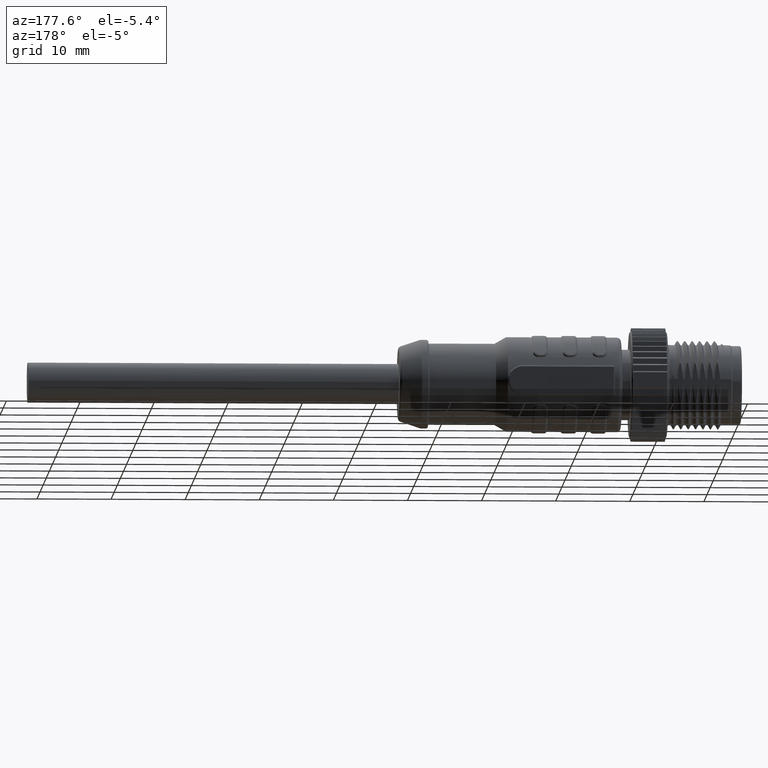
[diagram: clean part render]
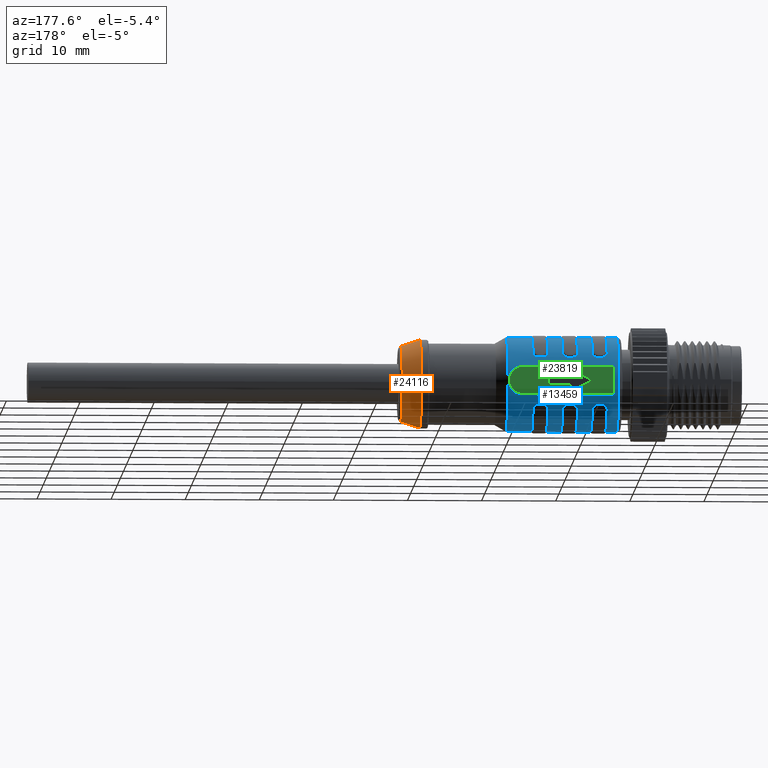
[diagram: same view with three faces highlighted in distinct colors, each labeled with its STEP entity id]
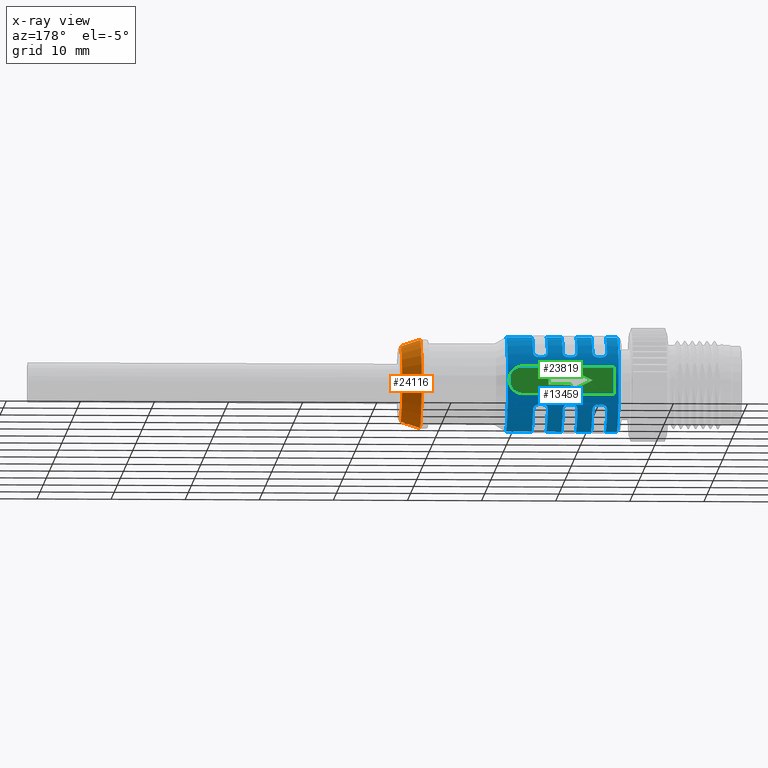
[diagram: x-ray of the same camera — body ghosted, the three highlighted faces saturated]
A machine part, auxiliary view with three faces highlighted in distinct colors.
The next image is the same camera in x-ray (body ghosted, the three faces saturated) — at least one of them is partly hidden behind the body in this view.
Their STEP definitions:

[orange] entity #24116 — the highlighted conical surface has half-angle 18.435 deg.
#6893=CARTESIAN_POINT('',(4.127697505292E1,0.E0,0.E0));
#6894=DIRECTION('',(1.E0,0.E0,0.E0));
#6895=DIRECTION('',(0.E0,0.E0,-1.E0));
#6896=AXIS2_PLACEMENT_3D('',#6893,#6894,#6895);
#6908=DIRECTION('',(-9.486832980504E-1,0.E0,3.162277660170E-1));
#6909=VECTOR('',#6908,2.720759220062E0);
#6910=CARTESIAN_POINT('',(4.385811388301E1,0.E0,5.113962038997E0));
#6911=LINE('',#6910,#6909);
#6919=CARTESIAN_POINT('',(4.385811388301E1,0.E0,0.E0));
#6920=DIRECTION('',(-1.E0,0.E0,0.E0));
#6921=DIRECTION('',(0.E0,0.E0,1.E0));
#6922=AXIS2_PLACEMENT_3D('',#6919,#6920,#6921);
#6924=CARTESIAN_POINT('',(4.385811388301E1,0.E0,0.E0));
#6925=DIRECTION('',(-1.E0,0.E0,0.E0));
#6926=DIRECTION('',(0.E0,2.319235123069E-3,9.999973105706E-1));
#6927=AXIS2_PLACEMENT_3D('',#6924,#6925,#6926);
#6976=DIRECTION('',(-9.486832980504E-1,0.E0,-3.162277660170E-1));
#6977=VECTOR('',#6976,2.720759220062E0);
#6978=CARTESIAN_POINT('',(4.385811388301E1,-1.173212320598E-14,
-5.113962038997E0));
#6979=LINE('',#6978,#6977);
#11900=CARTESIAN_POINT('',(4.127697505292E1,-2.579976078516E-14,
-5.974341649028E0));
#11901=CARTESIAN_POINT('',(4.127697505292E1,0.E0,5.974341649028E0));
#11902=VERTEX_POINT('',#11900);
#11903=VERTEX_POINT('',#11901);
#11904=CARTESIAN_POINT('',(4.385811388301E1,1.186048037888E-2,
5.113948285357E0));
#11905=CARTESIAN_POINT('',(4.385811388301E1,-2.239701479834E-14,
-5.113962038997E0));
#11906=VERTEX_POINT('',#11904);
#11907=VERTEX_POINT('',#11905);
#11908=CARTESIAN_POINT('',(4.385811388301E1,0.E0,5.113962038997E0));
#11909=VERTEX_POINT('',#11908);
#24100=CARTESIAN_POINT('',(4.256754446797E1,0.E0,0.E0));
#24101=DIRECTION('',(-1.E0,0.E0,0.E0));
#24102=DIRECTION('',(0.E0,0.E0,1.E0));
#24103=AXIS2_PLACEMENT_3D('',#24100,#24101,#24102);
#24104=CONICAL_SURFACE('',#24103,5.544151844012E0,1.843494882292E1);
#24106=ORIENTED_EDGE('',*,*,#24105,.F.);
#24108=ORIENTED_EDGE('',*,*,#24107,.F.);
#24110=ORIENTED_EDGE('',*,*,#24109,.T.);
#24111=ORIENTED_EDGE('',*,*,#24090,.F.);
#24113=ORIENTED_EDGE('',*,*,#24112,.F.);
#24114=EDGE_LOOP('',(#24106,#24108,#24110,#24111,#24113));
#24115=FACE_OUTER_BOUND('',#24114,.F.);
#24116=ADVANCED_FACE('',(#24115),#24104,.T.);
#6897=CIRCLE('',#6896,5.974341649028E0);
#6923=CIRCLE('',#6922,5.113962038997E0);
#6928=CIRCLE('',#6927,5.113962038997E0);
#24090=EDGE_CURVE('',#11902,#11903,#6897,.T.);
#24105=EDGE_CURVE('',#11906,#11907,#6928,.T.);
#24107=EDGE_CURVE('',#11909,#11906,#6923,.T.);
#24109=EDGE_CURVE('',#11909,#11903,#6911,.T.);
#24112=EDGE_CURVE('',#11907,#11902,#6979,.T.);

[blue] entity #13459 — the highlighted cylindrical surface (partial cylindrical patch) has radius 6.4 mm, axis along (-1, 0, 0).
#571=DIRECTION('',(-9.999999997891E-1,2.053966441587E-5,1.852296096468E-12));
#572=VECTOR('',#571,1.999999997643E0);
#573=CARTESIAN_POINT('',(2.419999999850E1,-2.034727149912E-5,
-6.399999999903E0));
#574=LINE('',#573,#572);
#575=DIRECTION('',(-9.999999997891E-1,2.053966441589E-5,1.852296096468E-12));
#576=VECTOR('',#575,1.999999997643E0);
#577=CARTESIAN_POINT('',(2.019999999850E1,-2.034727149914E-5,
-6.399999999903E0));
#578=LINE('',#577,#576);
#657=CARTESIAN_POINT('',(2.964115427319E1,0.E0,0.E0));
#658=DIRECTION('',(-1.E0,0.E0,0.E0));
#659=DIRECTION('',(0.E0,0.E0,1.E0));
#660=AXIS2_PLACEMENT_3D('',#657,#658,#659);
#675=DIRECTION('',(-9.999999999816E-1,-6.059322400566E-6,-2.926676087035E-11));
#676=VECTOR('',#675,3.441154271713E0);
#677=CARTESIAN_POINT('',(2.964115427319E1,0.E0,6.399999999999E0));
#678=LINE('',#677,#676);
#679=DIRECTION('',(-9.999999997881E-1,-2.058735250332E-5,-2.545519353871E-12));
#680=VECTOR('',#679,1.999999997635E0);
#681=CARTESIAN_POINT('',(2.419999999875E1,2.032364179484E-5,6.399999999903E0));
#682=LINE('',#681,#680);
#683=DIRECTION('',(-9.999999997881E-1,-2.058735250331E-5,-2.545519353871E-12));
#684=VECTOR('',#683,1.999999997635E0);
#685=CARTESIAN_POINT('',(2.019999999875E1,2.032364179486E-5,6.399999999903E0));
#686=LINE('',#685,#684);
#687=DIRECTION('',(-9.999999999082E-1,-1.354909454062E-5,6.461142736739E-11));
#688=VECTOR('',#687,1.499999998888E0);
#689=CARTESIAN_POINT('',(1.619999999875E1,2.032364179482E-5,6.399999999903E0));
#690=LINE('',#689,#688);
#691=DIRECTION('',(9.999999999080E-1,-1.356484767845E-5,6.476182559069E-11));
#692=VECTOR('',#691,1.499999998639E0);
#693=CARTESIAN_POINT('',(1.47E1,0.E0,-6.4E0));
#694=LINE('',#693,#692);
#695=DIRECTION('',(9.999999999819E-1,-6.024739272015E-6,-2.892941790041E-11));
#696=VECTOR('',#695,3.441154271972E0);
#697=CARTESIAN_POINT('',(2.620000000128E1,2.073205728420E-5,-6.399999999899E0));
#698=LINE('',#697,#696);
#699=CARTESIAN_POINT('',(1.52E1,6.300000003816E0,-1.126942723611E0));
#700=CARTESIAN_POINT('',(1.52E1,6.319695346920E0,-1.016838934437E0));
#701=CARTESIAN_POINT('',(1.520580994967E1,6.355170181696E0,-7.862836843178E-1));
#702=CARTESIAN_POINT('',(1.522156831700E1,6.391704571405E0,-3.978786821250E-1));
#703=CARTESIAN_POINT('',(1.522679491894E1,6.399999999470E0,-1.344980252776E-1));
#704=CARTESIAN_POINT('',(1.522679491924E1,6.399999999999E0,-2.517811006743E-8));
#706=CARTESIAN_POINT('',(1.522679491924E1,6.399999999999E0,-2.517811006743E-8));
#707=CARTESIAN_POINT('',(1.522679491955E1,6.400000000528E0,1.345008115570E-1));
#708=CARTESIAN_POINT('',(1.522156811764E1,6.391704336094E0,3.978853496071E-1));
#709=CARTESIAN_POINT('',(1.520580937799E1,6.355168403391E0,7.862980314658E-1));
#710=CARTESIAN_POINT('',(1.52E1,6.319694249074E0,1.016845069762E0));
#711=CARTESIAN_POINT('',(1.52E1,6.300000003816E0,1.126942721597E0));
#713=CARTESIAN_POINT('',(1.52E1,6.141661013114E0,1.8E0));
#714=CARTESIAN_POINT('',(1.52E1,6.133465097813E0,1.827964740818E0));
#715=CARTESIAN_POINT('',(1.521075195406E1,6.118078221060E0,1.879118233744E0));
#716=CARTESIAN_POINT('',(1.525657168699E1,6.096689635688E0,1.947197619874E0));
#717=CARTESIAN_POINT('',(1.532412199528E1,6.082709639096E0,1.990197831782E0));
#718=CARTESIAN_POINT('',(1.537342687209E1,6.079473661428E0,2.E0));
#719=CARTESIAN_POINT('',(1.54E1,6.079473661428E0,2.E0));
#721=DIRECTION('',(1.E0,0.E0,0.E0));
#722=VECTOR('',#721,1.224115427319E1);
#723=CARTESIAN_POINT('',(1.54E1,6.079473661428E0,2.E0));
#724=LINE('',#723,#722);
#725=CARTESIAN_POINT('',(2.764115427319E1,6.079473661428E0,2.E0));
#726=CARTESIAN_POINT('',(2.780163845529E1,6.079473661428E0,2.E0));
#727=CARTESIAN_POINT('',(2.811464833037E1,6.091755592816E0,1.963359181012E0));
#728=CARTESIAN_POINT('',(2.858327753704E1,6.146883456250E0,1.787315610165E0));
#729=CARTESIAN_POINT('',(2.898205771589E1,6.222318587440E0,1.509587500097E0));
#730=CARTESIAN_POINT('',(2.919872446863E1,6.275163225418E0,1.265788930628E0));
#731=CARTESIAN_POINT('',(2.929342543737E1,6.3E0,1.126942766960E0));
#733=CARTESIAN_POINT('',(2.929342543737E1,6.3E0,1.126942766960E0));
#734=CARTESIAN_POINT('',(2.936165420304E1,6.317894035251E0,1.026908918402E0));
#735=CARTESIAN_POINT('',(2.947730784380E1,6.351788841641E0,8.105054141266E-1));
#736=CARTESIAN_POINT('',(2.958763890125E1,6.389730560111E0,4.306898750298E-1));
#737=CARTESIAN_POINT('',(2.961435935395E1,6.400000000004E0,1.486254929692E-1));
#738=CARTESIAN_POINT('',(2.961435935394E1,6.400000000001E0,
-1.295952903086E-10));
#740=CARTESIAN_POINT('',(2.961435935394E1,6.400000000001E0,
-1.295952903086E-10));
#741=CARTESIAN_POINT('',(2.961435935394E1,6.399999999998E0,-1.492340873848E-1));
#742=CARTESIAN_POINT('',(2.958742330874E1,6.389647570688E0,-4.320996904939E-1));
#743=CARTESIAN_POINT('',(2.947671250477E1,6.351599550365E0,-8.118824911541E-1));
#744=CARTESIAN_POINT('',(2.936129774260E1,6.317800548059E0,-1.027431544156E0));
#745=CARTESIAN_POINT('',(2.929342543737E1,6.3E0,-1.126942766960E0));
#747=CARTESIAN_POINT('',(2.929342543737E1,6.3E0,-1.126942766960E0));
#748=CARTESIAN_POINT('',(2.919869386668E1,6.275155199587E0,-1.265833797800E0));
#749=CARTESIAN_POINT('',(2.898196104747E1,6.222296159373E0,-1.509681462139E0));
#750=CARTESIAN_POINT('',(2.858312631997E1,6.146859673756E0,-1.787395308827E0));
#751=CARTESIAN_POINT('',(2.811451527086E1,6.091746896638E0,-1.963385022303E0));
#752=CARTESIAN_POINT('',(2.780158403127E1,6.079473661428E0,-2.E0));
#753=CARTESIAN_POINT('',(2.764115427319E1,6.079473661428E0,-2.E0));
#755=DIRECTION('',(-1.E0,0.E0,0.E0));
#756=VECTOR('',#755,1.224115427319E1);
#757=CARTESIAN_POINT('',(2.764115427319E1,6.079473661428E0,-2.E0));
#758=LINE('',#757,#756);
#759=CARTESIAN_POINT('',(1.54E1,6.079473661428E0,-2.E0));
#760=CARTESIAN_POINT('',(1.537307195620E1,6.079473661428E0,-2.E0));
#761=CARTESIAN_POINT('',(1.532334254447E1,6.082825530815E0,-1.989845588511E0));
#762=CARTESIAN_POINT('',(1.525686526739E1,6.096675990605E0,-1.947229248931E0));
#763=CARTESIAN_POINT('',(1.521120426843E1,6.117753306916E0,-1.880171213570E0));
#764=CARTESIAN_POINT('',(1.52E1,6.133326229622E0,-1.828438563792E0));
#765=CARTESIAN_POINT('',(1.52E1,6.141661013114E0,-1.8E0));
#767=CARTESIAN_POINT('',(2.620000000154E1,0.E0,0.E0));
#768=DIRECTION('',(1.E0,0.E0,0.E0));
#769=DIRECTION('',(0.E0,8.014645714579E-1,5.980422566156E-1));
#770=AXIS2_PLACEMENT_3D('',#767,#768,#769);
#861=CARTESIAN_POINT('',(2.419999999875E1,0.E0,0.E0));
#862=DIRECTION('',(-1.E0,0.E0,0.E0));
#863=DIRECTION('',(0.E0,0.E0,1.E0));
#864=AXIS2_PLACEMENT_3D('',#861,#862,#863);
#876=CARTESIAN_POINT('',(2.419999999921E1,5.129373137423E0,3.827470603394E0));
#877=CARTESIAN_POINT('',(2.419999959344E1,5.178060363348E0,3.762222560724E0));
#878=CARTESIAN_POINT('',(2.422482412089E1,5.267740066695E0,3.636985281368E0));
#879=CARTESIAN_POINT('',(2.433264968567E1,5.386024756198E0,3.458821240477E0));
#880=CARTESIAN_POINT('',(2.450104443872E1,5.475021440549E0,3.315193213931E0));
#881=CARTESIAN_POINT('',(2.471539562432E1,5.530187328239E0,3.221584295282E0));
#882=CARTESIAN_POINT('',(2.486891410116E1,5.542562441258E0,3.200000247345E0));
#883=CARTESIAN_POINT('',(2.495000013524E1,5.542562584118E0,3.199999999905E0));
#890=DIRECTION('',(1.E0,2.051124270099E-10,1.894938052750E-10));
#891=VECTOR('',#890,4.999998647619E-1);
#892=CARTESIAN_POINT('',(2.495000013524E1,5.542562584118E0,3.199999999905E0));
#893=LINE('',#892,#891);
#899=CARTESIAN_POINT('',(2.545E1,5.542562584220E0,3.2E0));
#900=CARTESIAN_POINT('',(2.553118455053E1,5.542562427310E0,3.200000271776E0));
#901=CARTESIAN_POINT('',(2.568484921255E1,5.530157657034E0,3.221636234781E0));
#902=CARTESIAN_POINT('',(2.589927360292E1,5.474907932884E0,3.315382947369E0));
#903=CARTESIAN_POINT('',(2.606758167199E1,5.385847219821E0,3.459098496529E0));
#904=CARTESIAN_POINT('',(2.617524496803E1,5.267581782351E0,3.637211579187E0));
#905=CARTESIAN_POINT('',(2.620000048429E1,5.177992810478E0,3.762313092308E0));
#906=CARTESIAN_POINT('',(2.620000000089E1,5.129372861743E0,3.827470973622E0));
#913=CARTESIAN_POINT('',(2.220000000154E1,0.E0,0.E0));
#914=DIRECTION('',(1.E0,0.E0,0.E0));
#915=DIRECTION('',(0.E0,8.014645714579E-1,5.980422566156E-1));
#916=AXIS2_PLACEMENT_3D('',#913,#914,#915);
#1007=CARTESIAN_POINT('',(2.019999999875E1,0.E0,0.E0));
#1008=DIRECTION('',(-1.E0,0.E0,0.E0));
#1009=DIRECTION('',(0.E0,0.E0,1.E0));
#1010=AXIS2_PLACEMENT_3D('',#1007,#1008,#1009);
#1022=CARTESIAN_POINT('',(2.019999999921E1,5.129373137423E0,3.827470603394E0));
#1023=CARTESIAN_POINT('',(2.019999959344E1,5.178060363348E0,3.762222560724E0));
#1024=CARTESIAN_POINT('',(2.022482412089E1,5.267740066694E0,3.636985281369E0));
#1025=CARTESIAN_POINT('',(2.033264968567E1,5.386024756196E0,3.458821240481E0));
#1026=CARTESIAN_POINT('',(2.050104443871E1,5.475021440547E0,3.315193213935E0));
#1027=CARTESIAN_POINT('',(2.071539562432E1,5.530187328238E0,3.221584295284E0));
#1028=CARTESIAN_POINT('',(2.086891410116E1,5.542562441258E0,3.200000247345E0));
#1029=CARTESIAN_POINT('',(2.095000013524E1,5.542562584118E0,3.199999999905E0));
#1036=DIRECTION('',(1.E0,2.051124270097E-10,1.894929170961E-10));
#1037=VECTOR('',#1036,4.999998647625E-1);
#1038=CARTESIAN_POINT('',(2.095000013524E1,5.542562584118E0,3.199999999905E0));
#1039=LINE('',#1038,#1037);
#1045=CARTESIAN_POINT('',(2.145E1,5.542562584220E0,3.2E0));
#1046=CARTESIAN_POINT('',(2.153118455055E1,5.542562427310E0,3.200000271776E0));
#1047=CARTESIAN_POINT('',(2.168484921259E1,5.530157657028E0,3.221636234792E0));
#1048=CARTESIAN_POINT('',(2.189927360297E1,5.474907932865E0,3.315382947400E0));
#1049=CARTESIAN_POINT('',(2.206758167202E1,5.385847219796E0,3.459098496567E0));
#1050=CARTESIAN_POINT('',(2.217524496803E1,5.267581782335E0,3.637211579210E0));
#1051=CARTESIAN_POINT('',(2.220000048429E1,5.177992810472E0,3.762313092316E0));
#1052=CARTESIAN_POINT('',(2.220000000089E1,5.129372861743E0,3.827470973622E0));
#1059=CARTESIAN_POINT('',(1.820000000154E1,0.E0,0.E0));
#1060=DIRECTION('',(1.E0,0.E0,0.E0));
#1061=DIRECTION('',(0.E0,8.014645714579E-1,5.980422566156E-1));
#1062=AXIS2_PLACEMENT_3D('',#1059,#1060,#1061);
#1153=CARTESIAN_POINT('',(1.619999999875E1,0.E0,0.E0));
#1154=DIRECTION('',(-1.E0,0.E0,0.E0));
#1155=DIRECTION('',(0.E0,0.E0,1.E0));
#1156=AXIS2_PLACEMENT_3D('',#1153,#1154,#1155);
#1168=CARTESIAN_POINT('',(1.619999999921E1,5.129373137423E0,3.827470603394E0));
#1169=CARTESIAN_POINT('',(1.619999959344E1,5.178060363351E0,3.762222560720E0));
#1170=CARTESIAN_POINT('',(1.622482412089E1,5.267740066702E0,3.636985281359E0));
#1171=CARTESIAN_POINT('',(1.633264968568E1,5.386024756202E0,3.458821240472E0));
#1172=CARTESIAN_POINT('',(1.650104443872E1,5.475021440550E0,3.315193213930E0));
#1173=CARTESIAN_POINT('',(1.671539562432E1,5.530187328238E0,3.221584295283E0));
#1174=CARTESIAN_POINT('',(1.686891410116E1,5.542562441258E0,3.200000247345E0));
#1175=CARTESIAN_POINT('',(1.695000013524E1,5.542562584118E0,3.199999999905E0));
#1182=DIRECTION('',(1.E0,2.051124270097E-10,1.894946934534E-10));
#1183=VECTOR('',#1182,4.999998647625E-1);
#1184=CARTESIAN_POINT('',(1.695000013524E1,5.542562584118E0,3.199999999905E0));
#1185=LINE('',#1184,#1183);
#1191=CARTESIAN_POINT('',(1.745E1,5.542562584220E0,3.2E0));
#1192=CARTESIAN_POINT('',(1.753118455055E1,5.542562427310E0,3.200000271776E0));
#1193=CARTESIAN_POINT('',(1.768484921259E1,5.530157657028E0,3.221636234792E0));
#1194=CARTESIAN_POINT('',(1.789927360296E1,5.474907932866E0,3.315382947398E0));
#1195=CARTESIAN_POINT('',(1.806758167202E1,5.385847219799E0,3.459098496563E0));
#1196=CARTESIAN_POINT('',(1.817524496803E1,5.267581782338E0,3.637211579205E0));
#1197=CARTESIAN_POINT('',(1.820000048429E1,5.177992810473E0,3.762313092315E0));
#1198=CARTESIAN_POINT('',(1.820000000089E1,5.129372861743E0,3.827470973622E0));
#1205=CARTESIAN_POINT('',(1.47E1,0.E0,0.E0));
#1206=DIRECTION('',(1.E0,0.E0,0.E0));
#1207=DIRECTION('',(0.E0,0.E0,-1.E0));
#1208=AXIS2_PLACEMENT_3D('',#1205,#1206,#1207);
#6202=CARTESIAN_POINT('',(1.619999999850E1,0.E0,0.E0));
#6203=DIRECTION('',(-1.E0,0.E0,0.E0));
#6204=DIRECTION('',(0.E0,8.014645714757E-1,-5.980422565917E-1));
#6205=AXIS2_PLACEMENT_3D('',#6202,#6203,#6204);
#6296=CARTESIAN_POINT('',(1.820000000128E1,0.E0,0.E0));
#6297=DIRECTION('',(1.E0,0.E0,0.E0));
#6298=DIRECTION('',(0.E0,0.E0,-1.E0));
#6299=AXIS2_PLACEMENT_3D('',#6296,#6297,#6298);
#6311=CARTESIAN_POINT('',(1.820000000081E1,5.129373137406E0,-3.827470603416E0));
#6312=CARTESIAN_POINT('',(1.820000040656E1,5.178060363581E0,-3.762222560414E0));
#6313=CARTESIAN_POINT('',(1.817517587892E1,5.267740067155E0,-3.636985280707E0));
#6314=CARTESIAN_POINT('',(1.806735031374E1,5.386024756606E0,-3.458821239835E0));
#6315=CARTESIAN_POINT('',(1.789895556096E1,5.475021440619E0,-3.315193213809E0));
#6316=CARTESIAN_POINT('',(1.768460437578E1,5.530187328211E0,-3.221584295331E0));
#6317=CARTESIAN_POINT('',(1.753108589890E1,5.542562441259E0,-3.200000247343E0));
#6318=CARTESIAN_POINT('',(1.744999986476E1,5.542562584118E0,-3.199999999905E0));
#6325=DIRECTION('',(-1.E0,2.049596602805E-10,-1.896572301485E-10));
#6326=VECTOR('',#6325,4.999998647616E-1);
#6327=CARTESIAN_POINT('',(1.744999986476E1,5.542562584118E0,-3.199999999905E0));
#6328=LINE('',#6327,#6326);
#6334=CARTESIAN_POINT('',(1.695E1,5.542562584220E0,-3.2E0));
#6335=CARTESIAN_POINT('',(1.686881544963E1,5.542562427309E0,-3.200000271777E0));
#6336=CARTESIAN_POINT('',(1.671515078782E1,5.530157657092E0,-3.221636234680E0));
#6337=CARTESIAN_POINT('',(1.650072639722E1,5.474907932959E0,-3.315382947248E0));
#6338=CARTESIAN_POINT('',(1.633241832791E1,5.385847219753E0,-3.459098496636E0));
#6339=CARTESIAN_POINT('',(1.622475503194E1,5.267581782350E0,-3.637211579190E0));
#6340=CARTESIAN_POINT('',(1.619999951574E1,5.177992810452E0,-3.762313092339E0));
#6341=CARTESIAN_POINT('',(1.619999999914E1,5.129372861783E0,-3.827470973568E0));
#6348=CARTESIAN_POINT('',(2.019999999850E1,0.E0,0.E0));
#6349=DIRECTION('',(-1.E0,0.E0,0.E0));
#6350=DIRECTION('',(0.E0,8.014645714757E-1,-5.980422565917E-1));
#6351=AXIS2_PLACEMENT_3D('',#6348,#6349,#6350);
#6442=CARTESIAN_POINT('',(2.220000000128E1,0.E0,0.E0));
#6443=DIRECTION('',(1.E0,0.E0,0.E0));
#6444=DIRECTION('',(0.E0,0.E0,-1.E0));
#6445=AXIS2_PLACEMENT_3D('',#6442,#6443,#6444);
#6457=CARTESIAN_POINT('',(2.220000000081E1,5.129373137406E0,-3.827470603416E0));
#6458=CARTESIAN_POINT('',(2.220000040656E1,5.178060363583E0,-3.762222560412E0));
#6459=CARTESIAN_POINT('',(2.217517587892E1,5.267740067158E0,-3.636985280703E0));
#6460=CARTESIAN_POINT('',(2.206735031374E1,5.386024756608E0,-3.458821239831E0));
#6461=CARTESIAN_POINT('',(2.189895556096E1,5.475021440620E0,-3.315193213808E0));
#6462=CARTESIAN_POINT('',(2.168460437578E1,5.530187328211E0,-3.221584295331E0));
#6463=CARTESIAN_POINT('',(2.153108589890E1,5.542562441259E0,-3.200000247343E0));
#6464=CARTESIAN_POINT('',(2.144999986476E1,5.542562584118E0,-3.199999999905E0));
#6471=DIRECTION('',(-1.E0,2.049596602805E-10,-1.896554537912E-10));
#6472=VECTOR('',#6471,4.999998647616E-1);
#6473=CARTESIAN_POINT('',(2.144999986476E1,5.542562584118E0,-3.199999999905E0));
#6474=LINE('',#6473,#6472);
#6480=CARTESIAN_POINT('',(2.095E1,5.542562584220E0,-3.2E0));
#6481=CARTESIAN_POINT('',(2.086881544963E1,5.542562427309E0,-3.200000271777E0));
#6482=CARTESIAN_POINT('',(2.071515078783E1,5.530157657092E0,-3.221636234680E0));
#6483=CARTESIAN_POINT('',(2.050072639722E1,5.474907932960E0,-3.315382947246E0));
#6484=CARTESIAN_POINT('',(2.033241832792E1,5.385847219756E0,-3.459098496631E0));
#6485=CARTESIAN_POINT('',(2.022475503195E1,5.267581782353E0,-3.637211579186E0));
#6486=CARTESIAN_POINT('',(2.019999951574E1,5.177992810453E0,-3.762313092337E0));
#6487=CARTESIAN_POINT('',(2.019999999914E1,5.129372861783E0,-3.827470973568E0));
#6494=CARTESIAN_POINT('',(2.419999999850E1,0.E0,0.E0));
#6495=DIRECTION('',(-1.E0,0.E0,0.E0));
#6496=DIRECTION('',(0.E0,8.014645714757E-1,-5.980422565917E-1));
#6497=AXIS2_PLACEMENT_3D('',#6494,#6495,#6496);
#6588=CARTESIAN_POINT('',(2.620000000128E1,0.E0,0.E0));
#6589=DIRECTION('',(1.E0,0.E0,0.E0));
#6590=DIRECTION('',(0.E0,0.E0,-1.E0));
#6591=AXIS2_PLACEMENT_3D('',#6588,#6589,#6590);
#6603=CARTESIAN_POINT('',(2.620000000081E1,5.129373137406E0,-3.827470603416E0));
#6604=CARTESIAN_POINT('',(2.620000040656E1,5.178060363583E0,-3.762222560412E0));
#6605=CARTESIAN_POINT('',(2.617517587892E1,5.267740067158E0,-3.636985280703E0));
#6606=CARTESIAN_POINT('',(2.606735031374E1,5.386024756609E0,-3.458821239830E0));
#6607=CARTESIAN_POINT('',(2.589895556096E1,5.475021440620E0,-3.315193213807E0));
#6608=CARTESIAN_POINT('',(2.568460437578E1,5.530187328211E0,-3.221584295330E0));
#6609=CARTESIAN_POINT('',(2.553108589890E1,5.542562441259E0,-3.200000247343E0));
#6610=CARTESIAN_POINT('',(2.544999986476E1,5.542562584118E0,-3.199999999905E0));
#6617=DIRECTION('',(-1.E0,2.049596602804E-10,-1.896554537911E-10));
#6618=VECTOR('',#6617,4.999998647619E-1);
#6619=CARTESIAN_POINT('',(2.544999986476E1,5.542562584118E0,-3.199999999905E0));
#6620=LINE('',#6619,#6618);
#6626=CARTESIAN_POINT('',(2.495E1,5.542562584220E0,-3.2E0));
#6627=CARTESIAN_POINT('',(2.486881544963E1,5.542562427309E0,-3.200000271777E0));
#6628=CARTESIAN_POINT('',(2.471515078783E1,5.530157657092E0,-3.221636234680E0));
#6629=CARTESIAN_POINT('',(2.450072639722E1,5.474907932959E0,-3.315382947247E0));
#6630=CARTESIAN_POINT('',(2.433241832791E1,5.385847219753E0,-3.459098496635E0));
#6631=CARTESIAN_POINT('',(2.422475503194E1,5.267581782350E0,-3.637211579190E0));
#6632=CARTESIAN_POINT('',(2.419999951574E1,5.177992810452E0,-3.762313092338E0));
#6633=CARTESIAN_POINT('',(2.419999999914E1,5.129372861783E0,-3.827470973568E0));
#6640=CARTESIAN_POINT('',(1.52E1,0.E0,0.E0));
#6641=DIRECTION('',(-1.E0,0.E0,0.E0));
#6642=DIRECTION('',(0.E0,9.84375E-1,-1.760848073373E-1));
#6643=AXIS2_PLACEMENT_3D('',#6640,#6641,#6642);
#6770=CARTESIAN_POINT('',(1.52E1,0.E0,0.E0));
#6771=DIRECTION('',(-1.E0,0.E0,0.E0));
#6772=DIRECTION('',(0.E0,9.596345332990E-1,2.8125E-1));
#6773=AXIS2_PLACEMENT_3D('',#6770,#6771,#6772);
#10543=CARTESIAN_POINT('',(2.964115427319E1,0.E0,-6.399999999997E0));
#10544=CARTESIAN_POINT('',(2.964115427319E1,0.E0,6.399999999997E0));
#10545=VERTEX_POINT('',#10543);
#10546=VERTEX_POINT('',#10544);
#10547=CARTESIAN_POINT('',(2.620000000128E1,2.073205728420E-5,
-6.399999999899E0));
#10548=VERTEX_POINT('',#10547);
#10555=CARTESIAN_POINT('',(2.419999999850E1,0.E0,-6.4E0));
#10556=VERTEX_POINT('',#10555);
#10557=CARTESIAN_POINT('',(2.220000000128E1,2.073205728422E-5,
-6.399999999899E0));
#10558=VERTEX_POINT('',#10557);
#10565=CARTESIAN_POINT('',(2.019999999850E1,0.E0,-6.4E0));
#10566=VERTEX_POINT('',#10565);
#10567=CARTESIAN_POINT('',(1.820000000128E1,2.073205728424E-5,
-6.399999999899E0));
#10568=VERTEX_POINT('',#10567);
#10575=CARTESIAN_POINT('',(1.619999999850E1,0.E0,-6.4E0));
#10576=VERTEX_POINT('',#10575);
#10577=CARTESIAN_POINT('',(1.47E1,0.E0,-6.4E0));
#10578=VERTEX_POINT('',#10577);
#10579=CARTESIAN_POINT('',(1.47E1,0.E0,6.4E0));
#10580=VERTEX_POINT('',#10579);
#10581=CARTESIAN_POINT('',(1.619999999875E1,2.032364179482E-5,
6.399999999903E0));
#10582=VERTEX_POINT('',#10581);
#10589=CARTESIAN_POINT('',(1.820000000154E1,0.E0,6.4E0));
#10590=VERTEX_POINT('',#10589);
#10591=CARTESIAN_POINT('',(2.019999999875E1,2.032364179486E-5,
6.399999999903E0));
#10592=VERTEX_POINT('',#10591);
#10599=CARTESIAN_POINT('',(2.220000000154E1,0.E0,6.4E0));
#10600=VERTEX_POINT('',#10599);
#10601=CARTESIAN_POINT('',(2.419999999875E1,2.032364179484E-5,
6.399999999903E0));
#10602=VERTEX_POINT('',#10601);
#10609=CARTESIAN_POINT('',(2.620000000154E1,0.E0,6.4E0));
#10610=VERTEX_POINT('',#10609);
#10619=CARTESIAN_POINT('',(2.620000000154E1,5.129373257330E0,3.827470442340E0));
#10620=VERTEX_POINT('',#10619);
#10621=VERTEX_POINT('',#899);
#10622=CARTESIAN_POINT('',(2.495000013524E1,5.542562584118E0,3.199999999905E0));
#10623=VERTEX_POINT('',#10622);
#10624=VERTEX_POINT('',#876);
#10625=CARTESIAN_POINT('',(2.220000000154E1,5.129373257330E0,3.827470442340E0));
#10626=VERTEX_POINT('',#10625);
#10627=VERTEX_POINT('',#1045);
#10628=CARTESIAN_POINT('',(2.095000013524E1,5.542562584118E0,3.199999999905E0));
#10629=VERTEX_POINT('',#10628);
#10630=VERTEX_POINT('',#1022);
#10631=CARTESIAN_POINT('',(1.820000000154E1,5.129373257330E0,3.827470442340E0));
#10632=VERTEX_POINT('',#10631);
#10633=VERTEX_POINT('',#1191);
#10634=CARTESIAN_POINT('',(1.695000013524E1,5.542562584118E0,3.199999999905E0));
#10635=VERTEX_POINT('',#10634);
#10636=VERTEX_POINT('',#1168);
#10637=CARTESIAN_POINT('',(1.619999999850E1,5.129373257444E0,
-3.827470442187E0));
#10638=VERTEX_POINT('',#10637);
#10639=VERTEX_POINT('',#6334);
#10640=CARTESIAN_POINT('',(1.744999986476E1,5.542562584118E0,
-3.199999999905E0));
#10641=VERTEX_POINT('',#10640);
#10642=VERTEX_POINT('',#6311);
#10643=CARTESIAN_POINT('',(2.019999999850E1,5.129373257444E0,
-3.827470442187E0));
#10644=VERTEX_POINT('',#10643);
#10645=VERTEX_POINT('',#6480);
#10646=CARTESIAN_POINT('',(2.144999986476E1,5.542562584118E0,
-3.199999999905E0));
#10647=VERTEX_POINT('',#10646);
#10648=VERTEX_POINT('',#6457);
#10649=CARTESIAN_POINT('',(2.419999999850E1,5.129373257444E0,
-3.827470442187E0));
#10650=VERTEX_POINT('',#10649);
#10651=VERTEX_POINT('',#6626);
#10652=CARTESIAN_POINT('',(2.544999986476E1,5.542562584118E0,
-3.199999999905E0));
#10653=VERTEX_POINT('',#10652);
#10654=VERTEX_POINT('',#6603);
#10655=CARTESIAN_POINT('',(1.52E1,6.3E0,-1.126942766958E0));
#10656=CARTESIAN_POINT('',(1.52E1,6.141661013114E0,-1.8E0));
#10657=VERTEX_POINT('',#10655);
#10658=VERTEX_POINT('',#10656);
#10659=VERTEX_POINT('',#706);
#10660=VERTEX_POINT('',#711);
#10661=CARTESIAN_POINT('',(1.52E1,6.141661013114E0,1.8E0));
#10662=VERTEX_POINT('',#10661);
#10663=VERTEX_POINT('',#719);
#10664=CARTESIAN_POINT('',(2.764115427319E1,6.079473661428E0,2.E0));
#10665=VERTEX_POINT('',#10664);
#10666=VERTEX_POINT('',#731);
#10667=VERTEX_POINT('',#740);
#10668=VERTEX_POINT('',#745);
#10669=VERTEX_POINT('',#753);
#10670=CARTESIAN_POINT('',(1.54E1,6.079473661428E0,-2.E0));
#10671=VERTEX_POINT('',#10670);
#13355=CARTESIAN_POINT('',(4.57E1,0.E0,0.E0));
#13356=DIRECTION('',(-1.E0,0.E0,0.E0));
#13357=DIRECTION('',(0.E0,0.E0,1.E0));
#13358=AXIS2_PLACEMENT_3D('',#13355,#13356,#13357);
#13359=CYLINDRICAL_SURFACE('',#13358,6.4E0);
#13360=ORIENTED_EDGE('',*,*,#13346,.F.);
#13361=ORIENTED_EDGE('',*,*,#13301,.T.);
#13363=ORIENTED_EDGE('',*,*,#13362,.F.);
#13365=ORIENTED_EDGE('',*,*,#13364,.F.);
#13367=ORIENTED_EDGE('',*,*,#13366,.F.);
#13369=ORIENTED_EDGE('',*,*,#13368,.F.);
#13371=ORIENTED_EDGE('',*,*,#13370,.F.);
#13372=ORIENTED_EDGE('',*,*,#13289,.T.);
#13374=ORIENTED_EDGE('',*,*,#13373,.F.);
#13376=ORIENTED_EDGE('',*,*,#13375,.F.);
#13378=ORIENTED_EDGE('',*,*,#13377,.F.);
#13380=ORIENTED_EDGE('',*,*,#13379,.F.);
#13382=ORIENTED_EDGE('',*,*,#13381,.F.);
#13383=ORIENTED_EDGE('',*,*,#13277,.T.);
#13385=ORIENTED_EDGE('',*,*,#13384,.F.);
#13387=ORIENTED_EDGE('',*,*,#13386,.F.);
#13389=ORIENTED_EDGE('',*,*,#13388,.F.);
#13391=ORIENTED_EDGE('',*,*,#13390,.F.);
#13393=ORIENTED_EDGE('',*,*,#13392,.F.);
#13394=ORIENTED_EDGE('',*,*,#13265,.T.);
#13396=ORIENTED_EDGE('',*,*,#13395,.F.);
#13397=ORIENTED_EDGE('',*,*,#13261,.T.);
#13399=ORIENTED_EDGE('',*,*,#13398,.F.);
#13401=ORIENTED_EDGE('',*,*,#13400,.F.);
#13403=ORIENTED_EDGE('',*,*,#13402,.F.);
#13405=ORIENTED_EDGE('',*,*,#13404,.F.);
#13407=ORIENTED_EDGE('',*,*,#13406,.F.);
#13408=ORIENTED_EDGE('',*,*,#13249,.F.);
#13410=ORIENTED_EDGE('',*,*,#13409,.F.);
#13412=ORIENTED_EDGE('',*,*,#13411,.F.);
#13414=ORIENTED_EDGE('',*,*,#13413,.F.);
#13416=ORIENTED_EDGE('',*,*,#13415,.F.);
#13418=ORIENTED_EDGE('',*,*,#13417,.F.);
#13419=ORIENTED_EDGE('',*,*,#13237,.F.);
#13421=ORIENTED_EDGE('',*,*,#13420,.F.);
#13423=ORIENTED_EDGE('',*,*,#13422,.F.);
#13425=ORIENTED_EDGE('',*,*,#13424,.F.);
#13427=ORIENTED_EDGE('',*,*,#13426,.F.);
#13429=ORIENTED_EDGE('',*,*,#13428,.F.);
#13430=ORIENTED_EDGE('',*,*,#13225,.T.);
#13431=EDGE_LOOP('',(#13360,#13361,#13363,#13365,#13367,#13369,#13371,#13372,
#13374,#13376,#13378,#13380,#13382,#13383,#13385,#13387,#13389,#13391,#13393,
#13394,#13396,#13397,#13399,#13401,#13403,#13405,#13407,#13408,#13410,#13412,
#13414,#13416,#13418,#13419,#13421,#13423,#13425,#13427,#13429,#13430));
#13432=FACE_OUTER_BOUND('',#13431,.F.);
#13434=ORIENTED_EDGE('',*,*,#13433,.F.);
#13436=ORIENTED_EDGE('',*,*,#13435,.T.);
#13438=ORIENTED_EDGE('',*,*,#13437,.T.);
#13440=ORIENTED_EDGE('',*,*,#13439,.F.);
#13442=ORIENTED_EDGE('',*,*,#13441,.T.);
#13444=ORIENTED_EDGE('',*,*,#13443,.T.);
#13446=ORIENTED_EDGE('',*,*,#13445,.T.);
#13448=ORIENTED_EDGE('',*,*,#13447,.T.);
#13450=ORIENTED_EDGE('',*,*,#13449,.T.);
#13452=ORIENTED_EDGE('',*,*,#13451,.T.);
#13454=ORIENTED_EDGE('',*,*,#13453,.T.);
#13456=ORIENTED_EDGE('',*,*,#13455,.T.);
#13457=EDGE_LOOP('',(#13434,#13436,#13438,#13440,#13442,#13444,#13446,#13448,
#13450,#13452,#13454,#13456));
#13458=FACE_BOUND('',#13457,.F.);
#13459=ADVANCED_FACE('',(#13432,#13458),#13359,.T.);
#661=CIRCLE('',#660,6.399999999997E0);
#705=B_SPLINE_CURVE_WITH_KNOTS('',3,(#699,#700,#701,#702,#703,#704),
.UNSPECIFIED.,.F.,.F.,(4,1,1,4),(0.E0,3.333333333333E-1,6.666666666667E-1,1.E0),
.UNSPECIFIED.);
#712=B_SPLINE_CURVE_WITH_KNOTS('',3,(#706,#707,#708,#709,#710,#711),
.UNSPECIFIED.,.F.,.F.,(4,1,1,4),(0.E0,3.333333333333E-1,6.666666666667E-1,1.E0),
.UNSPECIFIED.);
#720=B_SPLINE_CURVE_WITH_KNOTS('',3,(#713,#714,#715,#716,#717,#718,#719),
.UNSPECIFIED.,.F.,.F.,(4,1,1,1,4),(0.E0,2.5E-1,5.E-1,7.5E-1,1.E0),
.UNSPECIFIED.);
#732=B_SPLINE_CURVE_WITH_KNOTS('',3,(#725,#726,#727,#728,#729,#730,#731),
.UNSPECIFIED.,.F.,.F.,(4,1,1,1,4),(0.E0,2.5E-1,5.E-1,7.5E-1,1.E0),
.UNSPECIFIED.);
#739=B_SPLINE_CURVE_WITH_KNOTS('',3,(#733,#734,#735,#736,#737,#738),
.UNSPECIFIED.,.F.,.F.,(4,1,1,4),(0.E0,3.333333333333E-1,6.666666666667E-1,1.E0),
.UNSPECIFIED.);
#746=B_SPLINE_CURVE_WITH_KNOTS('',3,(#740,#741,#742,#743,#744,#745),
.UNSPECIFIED.,.F.,.F.,(4,1,1,4),(0.E0,3.333333333333E-1,6.666666666667E-1,1.E0),
.UNSPECIFIED.);
#754=B_SPLINE_CURVE_WITH_KNOTS('',3,(#747,#748,#749,#750,#751,#752,#753),
.UNSPECIFIED.,.F.,.F.,(4,1,1,1,4),(0.E0,2.5E-1,5.E-1,7.5E-1,1.E0),
.UNSPECIFIED.);
#766=B_SPLINE_CURVE_WITH_KNOTS('',3,(#759,#760,#761,#762,#763,#764,#765),
.UNSPECIFIED.,.F.,.F.,(4,1,1,1,4),(0.E0,2.5E-1,5.E-1,7.5E-1,1.E0),
.UNSPECIFIED.);
#771=CIRCLE('',#770,6.4E0);
#865=CIRCLE('',#864,6.4E0);
#884=B_SPLINE_CURVE_WITH_KNOTS('',3,(#876,#877,#878,#879,#880,#881,#882,#883),
.UNSPECIFIED.,.F.,.F.,(4,1,1,1,1,4),(0.E0,2.E-1,4.E-1,6.E-1,8.E-1,1.E0),
.UNSPECIFIED.);
#907=B_SPLINE_CURVE_WITH_KNOTS('',3,(#899,#900,#901,#902,#903,#904,#905,#906),
.UNSPECIFIED.,.F.,.F.,(4,1,1,1,1,4),(0.E0,2.E-1,4.E-1,6.E-1,8.E-1,1.E0),
.UNSPECIFIED.);
#917=CIRCLE('',#916,6.4E0);
#1011=CIRCLE('',#1010,6.4E0);
#1030=B_SPLINE_CURVE_WITH_KNOTS('',3,(#1022,#1023,#1024,#1025,#1026,#1027,#1028,
#1029),.UNSPECIFIED.,.F.,.F.,(4,1,1,1,1,4),(0.E0,2.E-1,4.E-1,6.E-1,8.E-1,1.E0),
.UNSPECIFIED.);
#1053=B_SPLINE_CURVE_WITH_KNOTS('',3,(#1045,#1046,#1047,#1048,#1049,#1050,#1051,
#1052),.UNSPECIFIED.,.F.,.F.,(4,1,1,1,1,4),(0.E0,2.E-1,4.E-1,6.E-1,8.E-1,1.E0),
.UNSPECIFIED.);
#1063=CIRCLE('',#1062,6.4E0);
#1157=CIRCLE('',#1156,6.4E0);
#1176=B_SPLINE_CURVE_WITH_KNOTS('',3,(#1168,#1169,#1170,#1171,#1172,#1173,#1174,
#1175),.UNSPECIFIED.,.F.,.F.,(4,1,1,1,1,4),(0.E0,2.E-1,4.E-1,6.E-1,8.E-1,1.E0),
.UNSPECIFIED.);
#1199=B_SPLINE_CURVE_WITH_KNOTS('',3,(#1191,#1192,#1193,#1194,#1195,#1196,#1197,
#1198),.UNSPECIFIED.,.F.,.F.,(4,1,1,1,1,4),(0.E0,2.E-1,4.E-1,6.E-1,8.E-1,1.E0),
.UNSPECIFIED.);
#1209=CIRCLE('',#1208,6.4E0);
#6206=CIRCLE('',#6205,6.4E0);
#6300=CIRCLE('',#6299,6.4E0);
#6319=B_SPLINE_CURVE_WITH_KNOTS('',3,(#6311,#6312,#6313,#6314,#6315,#6316,#6317,
#6318),.UNSPECIFIED.,.F.,.F.,(4,1,1,1,1,4),(0.E0,2.E-1,4.E-1,6.E-1,8.E-1,1.E0),
.UNSPECIFIED.);
#6342=B_SPLINE_CURVE_WITH_KNOTS('',3,(#6334,#6335,#6336,#6337,#6338,#6339,#6340,
#6341),.UNSPECIFIED.,.F.,.F.,(4,1,1,1,1,4),(0.E0,2.E-1,4.E-1,6.E-1,8.E-1,1.E0),
.UNSPECIFIED.);
#6352=CIRCLE('',#6351,6.4E0);
#6446=CIRCLE('',#6445,6.4E0);
#6465=B_SPLINE_CURVE_WITH_KNOTS('',3,(#6457,#6458,#6459,#6460,#6461,#6462,#6463,
#6464),.UNSPECIFIED.,.F.,.F.,(4,1,1,1,1,4),(0.E0,2.E-1,4.E-1,6.E-1,8.E-1,1.E0),
.UNSPECIFIED.);
#6488=B_SPLINE_CURVE_WITH_KNOTS('',3,(#6480,#6481,#6482,#6483,#6484,#6485,#6486,
#6487),.UNSPECIFIED.,.F.,.F.,(4,1,1,1,1,4),(0.E0,2.E-1,4.E-1,6.E-1,8.E-1,1.E0),
.UNSPECIFIED.);
#6498=CIRCLE('',#6497,6.4E0);
#6592=CIRCLE('',#6591,6.4E0);
#6611=B_SPLINE_CURVE_WITH_KNOTS('',3,(#6603,#6604,#6605,#6606,#6607,#6608,#6609,
#6610),.UNSPECIFIED.,.F.,.F.,(4,1,1,1,1,4),(0.E0,2.E-1,4.E-1,6.E-1,8.E-1,1.E0),
.UNSPECIFIED.);
#6634=B_SPLINE_CURVE_WITH_KNOTS('',3,(#6626,#6627,#6628,#6629,#6630,#6631,#6632,
#6633),.UNSPECIFIED.,.F.,.F.,(4,1,1,1,1,4),(0.E0,2.E-1,4.E-1,6.E-1,8.E-1,1.E0),
.UNSPECIFIED.);
#6644=CIRCLE('',#6643,6.4E0);
#6774=CIRCLE('',#6773,6.4E0);
#13225=EDGE_CURVE('',#10548,#10545,#698,.T.);
#13237=EDGE_CURVE('',#10556,#10558,#574,.T.);
#13249=EDGE_CURVE('',#10566,#10568,#578,.T.);
#13261=EDGE_CURVE('',#10578,#10576,#694,.T.);
#13265=EDGE_CURVE('',#10582,#10580,#690,.T.);
#13277=EDGE_CURVE('',#10592,#10590,#686,.T.);
#13289=EDGE_CURVE('',#10602,#10600,#682,.T.);
#13301=EDGE_CURVE('',#10546,#10610,#678,.T.);
#13346=EDGE_CURVE('',#10546,#10545,#661,.T.);
#13362=EDGE_CURVE('',#10620,#10610,#771,.T.);
#13364=EDGE_CURVE('',#10621,#10620,#907,.T.);
#13366=EDGE_CURVE('',#10623,#10621,#893,.T.);
#13368=EDGE_CURVE('',#10624,#10623,#884,.T.);
#13370=EDGE_CURVE('',#10602,#10624,#865,.T.);
#13373=EDGE_CURVE('',#10626,#10600,#917,.T.);
#13375=EDGE_CURVE('',#10627,#10626,#1053,.T.);
#13377=EDGE_CURVE('',#10629,#10627,#1039,.T.);
#13379=EDGE_CURVE('',#10630,#10629,#1030,.T.);
#13381=EDGE_CURVE('',#10592,#10630,#1011,.T.);
#13384=EDGE_CURVE('',#10632,#10590,#1063,.T.);
#13386=EDGE_CURVE('',#10633,#10632,#1199,.T.);
#13388=EDGE_CURVE('',#10635,#10633,#1185,.T.);
#13390=EDGE_CURVE('',#10636,#10635,#1176,.T.);
#13392=EDGE_CURVE('',#10582,#10636,#1157,.T.);
#13395=EDGE_CURVE('',#10578,#10580,#1209,.T.);
#13398=EDGE_CURVE('',#10638,#10576,#6206,.T.);
#13400=EDGE_CURVE('',#10639,#10638,#6342,.T.);
#13402=EDGE_CURVE('',#10641,#10639,#6328,.T.);
#13404=EDGE_CURVE('',#10642,#10641,#6319,.T.);
#13406=EDGE_CURVE('',#10568,#10642,#6300,.T.);
#13409=EDGE_CURVE('',#10644,#10566,#6352,.T.);
#13411=EDGE_CURVE('',#10645,#10644,#6488,.T.);
#13413=EDGE_CURVE('',#10647,#10645,#6474,.T.);
#13415=EDGE_CURVE('',#10648,#10647,#6465,.T.);
#13417=EDGE_CURVE('',#10558,#10648,#6446,.T.);
#13420=EDGE_CURVE('',#10650,#10556,#6498,.T.);
#13422=EDGE_CURVE('',#10651,#10650,#6634,.T.);
#13424=EDGE_CURVE('',#10653,#10651,#6620,.T.);
#13426=EDGE_CURVE('',#10654,#10653,#6611,.T.);
#13428=EDGE_CURVE('',#10548,#10654,#6592,.T.);
#13433=EDGE_CURVE('',#10657,#10658,#6644,.T.);
#13435=EDGE_CURVE('',#10657,#10659,#705,.T.);
#13437=EDGE_CURVE('',#10659,#10660,#712,.T.);
#13439=EDGE_CURVE('',#10662,#10660,#6774,.T.);
#13441=EDGE_CURVE('',#10662,#10663,#720,.T.);
#13443=EDGE_CURVE('',#10663,#10665,#724,.T.);
#13445=EDGE_CURVE('',#10665,#10666,#732,.T.);
#13447=EDGE_CURVE('',#10666,#10667,#739,.T.);
#13449=EDGE_CURVE('',#10667,#10668,#746,.T.);
#13451=EDGE_CURVE('',#10668,#10669,#754,.T.);
#13453=EDGE_CURVE('',#10669,#10671,#758,.T.);
#13455=EDGE_CURVE('',#10671,#10658,#766,.T.);

[green] entity #23819 — the highlighted planar face has unit normal (0, 1, 0).
#6681=DIRECTION('',(1.E0,0.E0,0.E0));
#6682=VECTOR('',#6681,1.224402113034E1);
#6683=CARTESIAN_POINT('',(1.54E1,6.5E0,1.8E0));
#6684=LINE('',#6683,#6682);
#6689=CARTESIAN_POINT('',(2.764115427319E1,6.5E0,-1.8E0));
#6690=CARTESIAN_POINT('',(2.781784183487E1,6.5E0,-1.8E0));
#6691=CARTESIAN_POINT('',(2.815499036695E1,6.5E0,-1.750256991673E0));
#6692=CARTESIAN_POINT('',(2.862988724272E1,6.5E0,-1.533824611801E0));
#6693=CARTESIAN_POINT('',(2.902052665565E1,6.5E0,-1.194009759958E0));
#6694=CARTESIAN_POINT('',(2.930040210442E1,6.5E0,-7.586463257904E-1));
#6695=CARTESIAN_POINT('',(2.944651274190E1,6.5E0,-2.627433283651E-1));
#6696=CARTESIAN_POINT('',(2.944777220453E1,6.5E0,2.540604231140E-1));
#6697=CARTESIAN_POINT('',(2.930397861602E1,6.5E0,7.506634659980E-1));
#6698=CARTESIAN_POINT('',(2.902645465877E1,6.5E0,1.187321399584E0));
#6699=CARTESIAN_POINT('',(2.863655644986E1,6.5E0,1.529141916384E0));
#6700=CARTESIAN_POINT('',(2.816614836705E1,6.5E0,1.747338912972E0));
#6701=CARTESIAN_POINT('',(2.782076846735E1,6.5E0,1.8E0));
#6702=CARTESIAN_POINT('',(2.764402113034E1,6.5E0,1.8E0));
#6704=DIRECTION('',(8.944271909999E-1,0.E0,4.472135955E-1));
#6705=VECTOR('',#6704,3.354101966250E0);
#6706=CARTESIAN_POINT('',(1.82E1,6.5E0,7.268260067879E-14));
#6707=LINE('',#6706,#6705);
#6708=DIRECTION('',(-8.944271909999E-1,0.E0,4.472135955E-1));
#6709=VECTOR('',#6708,3.354101966250E0);
#6710=CARTESIAN_POINT('',(2.12E1,6.5E0,-1.5E0));
#6711=LINE('',#6710,#6709);
#6716=DIRECTION('',(0.E0,0.E0,1.E0));
#6717=VECTOR('',#6716,3.6E0);
#6718=CARTESIAN_POINT('',(1.54E1,6.5E0,-1.8E0));
#6719=LINE('',#6718,#6717);
#6743=DIRECTION('',(-1.E0,0.E0,0.E0));
#6744=VECTOR('',#6743,1.224115427319E1);
#6745=CARTESIAN_POINT('',(2.764115427319E1,6.5E0,-1.8E0));
#6746=LINE('',#6745,#6744);
#6783=DIRECTION('',(0.E0,0.E0,1.E0));
#6784=VECTOR('',#6783,8.708502195130E-1);
#6785=CARTESIAN_POINT('',(2.12E1,6.5E0,-1.5E0));
#6786=LINE('',#6785,#6784);
#6791=DIRECTION('',(1.E0,0.E0,0.E0));
#6792=VECTOR('',#6791,3.E0);
#6793=CARTESIAN_POINT('',(2.12E1,6.5E0,-6.291497804870E-1));
#6794=LINE('',#6793,#6792);
#6799=DIRECTION('',(0.E0,0.E0,1.E0));
#6800=VECTOR('',#6799,1.258299560974E0);
#6801=CARTESIAN_POINT('',(2.42E1,6.5E0,-6.291497804870E-1));
#6802=LINE('',#6801,#6800);
#6807=DIRECTION('',(-1.E0,0.E0,0.E0));
#6808=VECTOR('',#6807,3.E0);
#6809=CARTESIAN_POINT('',(2.42E1,6.5E0,6.291497804870E-1));
#6810=LINE('',#6809,#6808);
#6815=DIRECTION('',(-2.855714472405E-14,0.E0,1.E0));
#6816=VECTOR('',#6815,8.708502195131E-1);
#6817=CARTESIAN_POINT('',(2.12E1,6.5E0,6.291497804870E-1));
#6818=LINE('',#6817,#6816);
#11845=CARTESIAN_POINT('',(2.764115427319E1,6.5E0,1.8E0));
#11846=VERTEX_POINT('',#11845);
#11847=VERTEX_POINT('',#6689);
#11850=CARTESIAN_POINT('',(1.54E1,6.5E0,1.8E0));
#11851=VERTEX_POINT('',#11850);
#11852=CARTESIAN_POINT('',(1.54E1,6.5E0,-1.8E0));
#11853=VERTEX_POINT('',#11852);
#11854=CARTESIAN_POINT('',(1.82E1,6.5E0,7.268260067879E-14));
#11855=CARTESIAN_POINT('',(2.12E1,6.5E0,1.5E0));
#11856=VERTEX_POINT('',#11854);
#11857=VERTEX_POINT('',#11855);
#11858=CARTESIAN_POINT('',(2.12E1,6.5E0,6.291497804870E-1));
#11859=VERTEX_POINT('',#11858);
#11860=CARTESIAN_POINT('',(2.42E1,6.5E0,6.291497804870E-1));
#11861=VERTEX_POINT('',#11860);
#11862=CARTESIAN_POINT('',(2.42E1,6.5E0,-6.291497804870E-1));
#11863=VERTEX_POINT('',#11862);
#11864=CARTESIAN_POINT('',(2.12E1,6.5E0,-6.291497804870E-1));
#11865=VERTEX_POINT('',#11864);
#11866=CARTESIAN_POINT('',(2.12E1,6.5E0,-1.5E0));
#11867=VERTEX_POINT('',#11866);
#23790=CARTESIAN_POINT('',(1.52E1,6.5E0,2.E0));
#23791=DIRECTION('',(0.E0,1.E0,0.E0));
#23792=DIRECTION('',(0.E0,0.E0,-1.E0));
#23793=AXIS2_PLACEMENT_3D('',#23790,#23791,#23792);
#23794=PLANE('',#23793);
#23795=ORIENTED_EDGE('',*,*,#23742,.T.);
#23796=ORIENTED_EDGE('',*,*,#23781,.F.);
#23798=ORIENTED_EDGE('',*,*,#23797,.F.);
#23800=ORIENTED_EDGE('',*,*,#23799,.F.);
#23801=EDGE_LOOP('',(#23795,#23796,#23798,#23800));
#23802=FACE_OUTER_BOUND('',#23801,.F.);
#23804=ORIENTED_EDGE('',*,*,#23803,.T.);
#23806=ORIENTED_EDGE('',*,*,#23805,.F.);
#23808=ORIENTED_EDGE('',*,*,#23807,.F.);
#23810=ORIENTED_EDGE('',*,*,#23809,.F.);
#23812=ORIENTED_EDGE('',*,*,#23811,.F.);
#23814=ORIENTED_EDGE('',*,*,#23813,.F.);
#23816=ORIENTED_EDGE('',*,*,#23815,.T.);
#23817=EDGE_LOOP('',(#23804,#23806,#23808,#23810,#23812,#23814,#23816));
#23818=FACE_BOUND('',#23817,.F.);
#23819=ADVANCED_FACE('',(#23802,#23818),#23794,.T.);
#6703=B_SPLINE_CURVE_WITH_KNOTS('',3,(#6689,#6690,#6691,#6692,#6693,#6694,#6695,
#6696,#6697,#6698,#6699,#6700,#6701,#6702),.UNSPECIFIED.,.F.,.F.,(4,1,1,1,1,1,1,
1,1,1,1,4),(0.E0,9.090909090909E-2,1.818181818182E-1,2.727272727273E-1,
3.636363636364E-1,4.545454545455E-1,5.454545454545E-1,6.363636363636E-1,
7.272727272727E-1,8.181818181818E-1,9.090909090909E-1,1.E0),.UNSPECIFIED.);
#23742=EDGE_CURVE('',#11847,#11846,#6703,.T.);
#23781=EDGE_CURVE('',#11851,#11846,#6684,.T.);
#23797=EDGE_CURVE('',#11853,#11851,#6719,.T.);
#23799=EDGE_CURVE('',#11847,#11853,#6746,.T.);
#23803=EDGE_CURVE('',#11856,#11857,#6707,.T.);
#23805=EDGE_CURVE('',#11859,#11857,#6818,.T.);
#23807=EDGE_CURVE('',#11861,#11859,#6810,.T.);
#23809=EDGE_CURVE('',#11863,#11861,#6802,.T.);
#23811=EDGE_CURVE('',#11865,#11863,#6794,.T.);
#23813=EDGE_CURVE('',#11867,#11865,#6786,.T.);
#23815=EDGE_CURVE('',#11867,#11856,#6711,.T.);